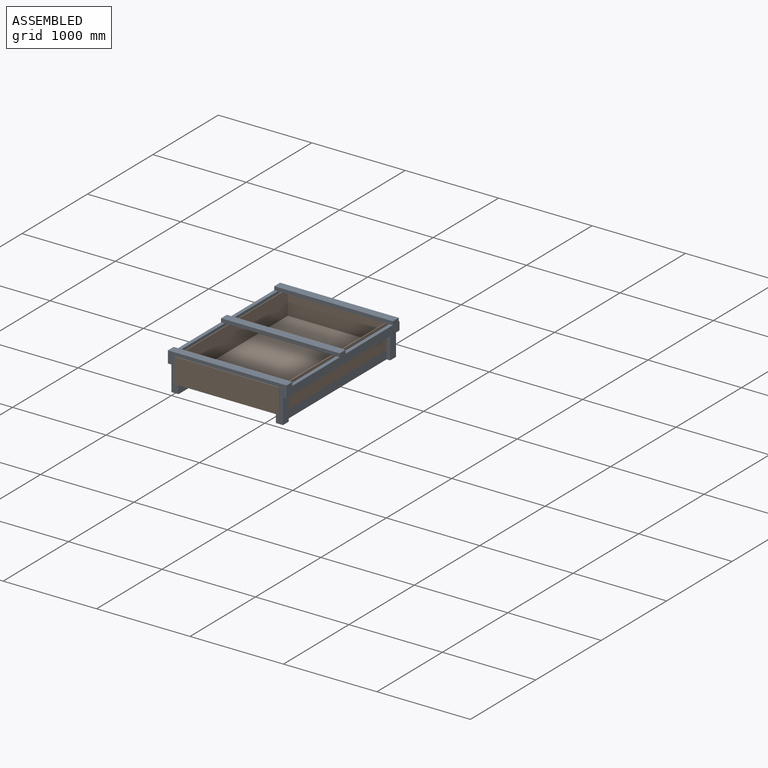
[diagram: assembled view]
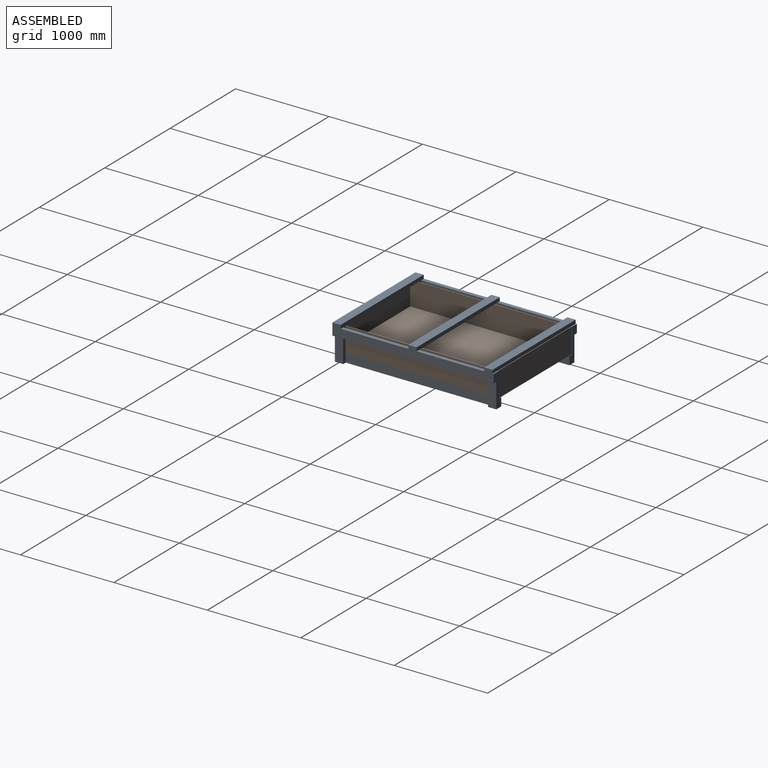
[diagram: assembled view, second angle]
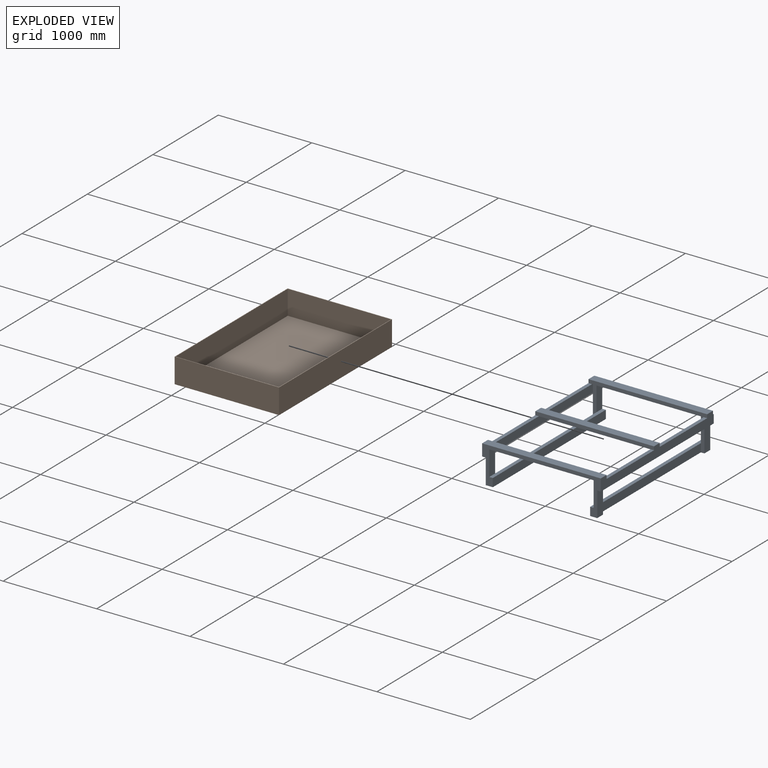
[diagram: exploded view]
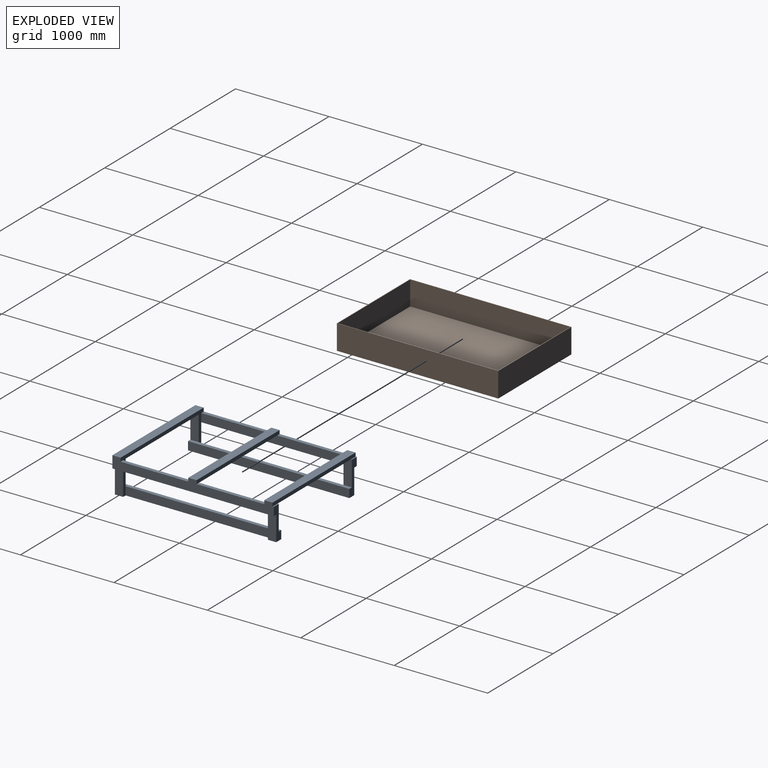
[diagram: exploded view, second angle]
ASSEMBLY  parts=2 mates=2
PART A: 44 faces, bbox 1270x1727.2x393.7 mm
  f0: plane 1117.6x88.9mm, normal (0,0,-1), area 99354.6mm2, adj f2,f5,f38,f39
  f1: plane 1727.2x127mm, normal (1,0,0), area 163709.4mm2, adj f2,f4,f5,f6,f8,f9,f11,f12
  f2: plane 1270x393.7mm, normal (0,-1,0), area 89032.1mm2, adj f0,f1,f3,f4,f12,f13,f18,f19
  f3: plane 1727.2x127mm, normal (-1,0,0), area 163709.4mm2, adj f2,f4,f5,f7,f14,f16,f17,f18
  f4: plane 1270x88.9mm, normal (0,0,1), area 112903mm2, adj f1,f2,f3,f5
  f5: plane 1270x393.7mm, normal (0,1,0), area 75483.7mm2, adj f0,f1,f3,f4,f6,f7,f10,f13
  f6: plane 723.9x38.1mm, normal (0,0,1), area 27580.6mm2, adj f1,f5,f10,f41
  f7: plane 723.9x38.1mm, normal (0,0,1), area 27580.6mm2, adj f3,f5,f15,f41
  f8: plane 76.2x12.7mm, normal (0,0,1), area 967.7mm2, adj f1,f11,f25,f33
  f9: plane 723.9x38.1mm, normal (0,0,1), area 27580.6mm2, adj f1,f10,f31,f43
  f10: plane 1549.4x88.9mm, normal (-1,0,0), area 137741.7mm2, adj f5,f6,f9,f12,f20,f34,f40
  f11: plane 355.6x114.3mm, normal (0,1,0), area 20322.5mm2, adj f1,f8,f12,f22,f23,f24,f25,f35
  f12: plane 1727.2x38.1mm, normal (0,0,-1), area 65806.3mm2, adj f1,f2,f10,f11,f13,f35
  f13: plane 266.7x88.9mm, normal (1,0,0), area 23709.6mm2, adj f2,f5,f12,f22
  f14: plane 723.9x38.1mm, normal (0,0,1), area 27580.6mm2, adj f3,f15,f31,f43
  f15: plane 1549.4x88.9mm, normal (1,0,0), area 137741.7mm2, adj f5,f7,f14,f18,f20,f37,f40
  f16: plane 355.6x114.3mm, normal (0,1,0), area 20322.5mm2, adj f3,f17,f18,f27,f28,f29,f30,f36
  f17: plane 76.2x12.7mm, normal (0,0,1), area 967.7mm2, adj f3,f16,f30,f33
  f18: plane 1727.2x38.1mm, normal (0,0,-1), area 65806.3mm2, adj f2,f3,f15,f16,f19,f36
  f19: plane 266.7x88.9mm, normal (-1,0,0), area 23709.6mm2, adj f2,f5,f18,f27
  f20: plane 1193.8x88.9mm, normal (0,0,-1), area 100322.4mm2, adj f10,f15,f25,f30,f31,f33,f34,f37
  f21: plane 1549.4x88.9mm, normal (1,0,0), area 137741.7mm2, adj f5,f22,f23,f34
  f22: plane 1727.2x76.2mm, normal (0,0,-1), area 72580.5mm2, adj f2,f5,f11,f13,f21,f24,f34,f35
  f23: plane 1727.2x38.1mm, normal (0,0,1), area 65806.3mm2, adj f2,f11,f21,f24,f25,f39
  f24: plane 1727.2x88.9mm, normal (-1,0,0), area 153548.1mm2, adj f2,f11,f22,f23
  f25: plane 266.7x88.9mm, normal (-1,0,0), area 23709.6mm2, adj f8,f11,f20,f23,f34
  f26: plane 1549.4x88.9mm, normal (-1,0,0), area 137741.7mm2, adj f5,f27,f29,f37
  f27: plane 1727.2x76.2mm, normal (0,0,-1), area 72580.5mm2, adj f2,f5,f16,f19,f26,f28,f36,f37
  f28: plane 1727.2x88.9mm, normal (1,0,0), area 153548.1mm2, adj f2,f16,f27,f29
  f29: plane 1727.2x38.1mm, normal (0,0,1), area 65806.3mm2, adj f2,f16,f26,f28,f30,f38
  f30: plane 266.7x88.9mm, normal (1,0,0), area 23709.6mm2, adj f16,f17,f20,f29,f37
  f31: plane 1270x38.1mm, normal (0,-1,0), area 48387mm2, adj f1,f3,f9,f14,f20,f32
  f32: plane 1270x88.9mm, normal (0,0,1), area 112903mm2, adj f1,f3,f31,f33
  f33: plane 1270x38.1mm, normal (0,1,0), area 48387mm2, adj f1,f3,f8,f17,f20,f32
  f34: plane 355.6x38.1mm, normal (0,-1,0), area 13548.4mm2, adj f10,f20,f21,f22,f25,f35
  f35: plane 266.7x88.9mm, normal (1,0,0), area 23709.6mm2, adj f11,f12,f22,f34
  f36: plane 266.7x88.9mm, normal (-1,0,0), area 23709.6mm2, adj f16,f18,f27,f37
  f37: plane 355.6x38.1mm, normal (0,-1,0), area 13548.4mm2, adj f15,f20,f26,f27,f30,f36
  f38: plane 266.7x88.9mm, normal (1,0,0), area 23709.6mm2, adj f0,f2,f5,f29
  f39: plane 266.7x88.9mm, normal (-1,0,0), area 23709.6mm2, adj f0,f2,f5,f23
  f40: plane 1193.8x88.9mm, normal (0,0,-1), area 106128.8mm2, adj f10,f15,f41,f43
  f41: plane 1270x38.1mm, normal (0,-1,0), area 48387mm2, adj f1,f3,f6,f7,f40,f42
  f42: plane 1270x88.9mm, normal (0,0,1), area 112903mm2, adj f1,f3,f41,f43
  f43: plane 1270x38.1mm, normal (0,1,0), area 48387mm2, adj f1,f3,f9,f14,f40,f42
PART B: 11 faces, bbox 1117.6x1727.2x266.7 mm
  f0: plane 1727.2x1117.6mm, normal (0,0,1), area 35967.7mm2, adj f1,f2,f3,f5,f6,f7,f8,f10
  f1: plane 1117.6x266.7mm, normal (0,1,0), area 298063.9mm2, adj f0,f2,f4,f5
  f2: plane 1727.2x266.7mm, normal (1,0,0), area 460644.2mm2, adj f0,f1,f3,f4
  f3: plane 1117.6x266.7mm, normal (0,-1,0), area 298063.9mm2, adj f0,f2,f4,f5
  f4: plane 1727.2x1117.6mm, normal (0,0,-1), area 1930318.7mm2, adj f1,f2,f3,f5
  f5: plane 1727.2x266.7mm, normal (-1,0,0), area 460644.2mm2, adj f0,f1,f3,f4
  f6: plane 1104.9x260.35mm, normal (0,-1,0), area 287660.7mm2, adj f0,f7,f9,f10
  f7: plane 1714.5x260.35mm, normal (-1,0,0), area 446370.1mm2, adj f0,f6,f8,f9
  f8: plane 1104.9x260.35mm, normal (0,1,0), area 287660.7mm2, adj f0,f7,f9,f10
  f9: plane 1714.5x1104.9mm, normal (0,0,1), area 1894351.1mm2, adj f6,f7,f8,f10
  f10: plane 1714.5x260.35mm, normal (1,0,0), area 446370.1mm2, adj f0,f6,f8,f9
PLACE A t=(596.9,0,0)mm
PLACE B t=(596.9,-5.56,0)mm
MATE planar A.f39 <-> B.f2  axis (-1,0,0) through (1155.7,44.45,222.25)mm
MATE planar B.f4 <-> A.f29  axis (0,0,-1) through (596.9,858.04,88.9)mm
